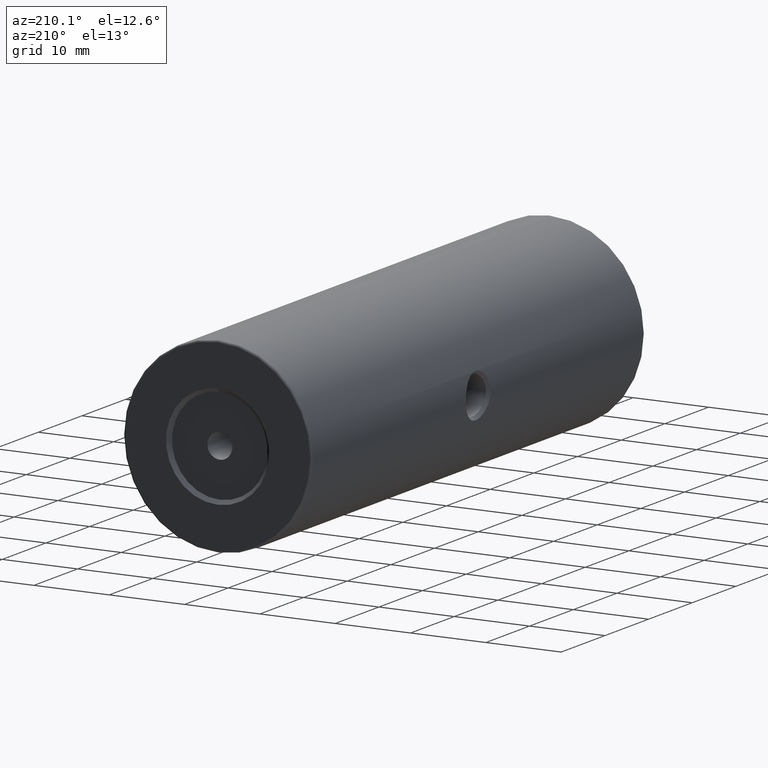
[diagram: clean part render]
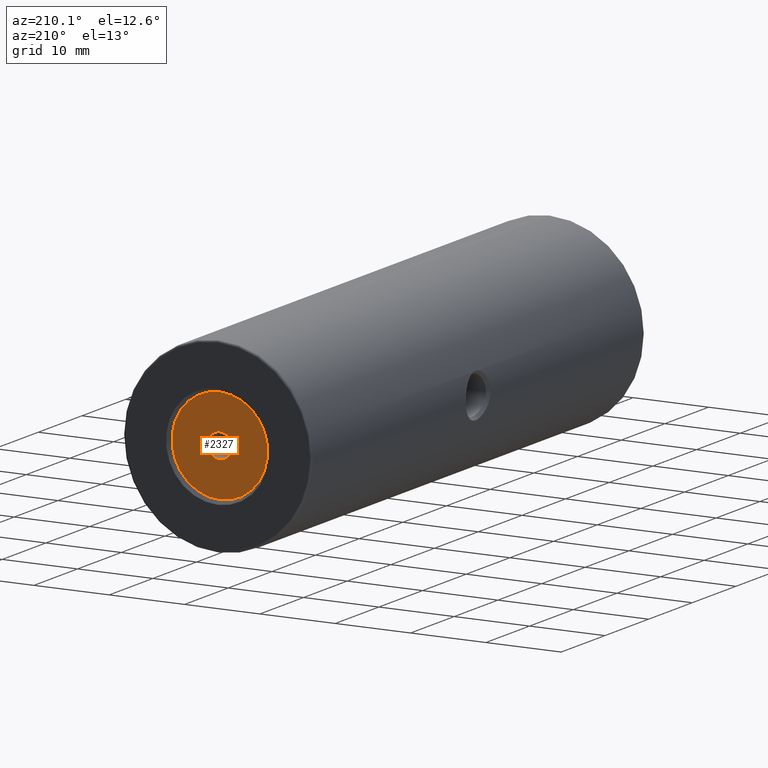
[diagram: same view with one face highlighted and labeled with its STEP entity id]
A machine part, auxiliary view. The second image highlights one B-rep face of the part: STEP entity #2327.
In plain terms, the highlighted planar face has unit normal (0, 1, 0).
Its self-contained STEP definition (entity closure, byte-faithful):
#29 = DIRECTION ( 'NONE',  ( 0.0000000000000000000, 0.0000000000000000000, 1.000000000000000000 ) ) ;
#80 = CARTESIAN_POINT ( 'NONE',  ( -22.50520183104453409, 38.99825218476939170, 50.00000000000000000 ) ) ;
#109 = CARTESIAN_POINT ( 'NONE',  ( -22.50520183104453409, 38.99825218476939170, 43.64999999999999858 ) ) ;
#142 = ORIENTED_EDGE ( 'NONE', *, *, #1512, .F. ) ;
#265 = FACE_BOUND ( 'NONE', #1192, .T. ) ;
#299 = DIRECTION ( 'NONE',  ( 0.0000000000000000000, 1.000000000000000000, 0.0000000000000000000 ) ) ;
#309 = EDGE_CURVE ( 'NONE', #2095, #876, #1846, .T. ) ;
#528 = AXIS2_PLACEMENT_3D ( 'NONE', #1926, #1935, #1121 ) ;
#596 = FACE_OUTER_BOUND ( 'NONE', #2811, .T. ) ;
#846 = CARTESIAN_POINT ( 'NONE',  ( -22.50520183104453409, 38.99825218476939170, 51.64999999999999858 ) ) ;
#876 = VERTEX_POINT ( 'NONE', #3428 ) ;
#1024 = CIRCLE ( 'NONE', #2494, 1.649999999999998579 ) ;
#1101 = CARTESIAN_POINT ( 'NONE',  ( -22.50520183104453409, 38.99825218476939170, 50.00000000000000000 ) ) ;
#1121 = DIRECTION ( 'NONE',  ( 0.0000000000000000000, 0.0000000000000000000, 1.000000000000000000 ) ) ;
#1192 = EDGE_LOOP ( 'NONE', ( #1404, #142 ) ) ;
#1204 = AXIS2_PLACEMENT_3D ( 'NONE', #1101, #299, #1326 ) ;
#1214 = ORIENTED_EDGE ( 'NONE', *, *, #2176, .T. ) ;
#1326 = DIRECTION ( 'NONE',  ( 0.0000000000000000000, -0.0000000000000000000, 1.000000000000000000 ) ) ;
#1404 = ORIENTED_EDGE ( 'NONE', *, *, #309, .F. ) ;
#1435 = VERTEX_POINT ( 'NONE', #109 ) ;
#1450 = AXIS2_PLACEMENT_3D ( 'NONE', #80, #2229, #2213 ) ;
#1512 = EDGE_CURVE ( 'NONE', #876, #2095, #1024, .T. ) ;
#1563 = AXIS2_PLACEMENT_3D ( 'NONE', #1668, #2736, #29 ) ;
#1668 = CARTESIAN_POINT ( 'NONE',  ( -22.50520183104453409, 38.99825218476939170, 50.00000000000000000 ) ) ;
#1784 = CARTESIAN_POINT ( 'NONE',  ( -22.50520183104453409, 38.99825218476939170, 56.35000000000000142 ) ) ;
#1846 = CIRCLE ( 'NONE', #1450, 1.649999999999998579 ) ;
#1911 = CIRCLE ( 'NONE', #1563, 6.350000000000001421 ) ;
#1926 = CARTESIAN_POINT ( 'NONE',  ( -22.50520183104453409, 38.99825218476939170, 50.00000000000000000 ) ) ;
#1935 = DIRECTION ( 'NONE',  ( 0.0000000000000000000, 1.000000000000000000, 0.0000000000000000000 ) ) ;
#1939 = CIRCLE ( 'NONE', #528, 6.350000000000001421 ) ;
#2025 = VERTEX_POINT ( 'NONE', #1784 ) ;
#2095 = VERTEX_POINT ( 'NONE', #846 ) ;
#2176 = EDGE_CURVE ( 'NONE', #2025, #1435, #1939, .T. ) ;
#2213 = DIRECTION ( 'NONE',  ( 0.0000000000000000000, 0.0000000000000000000, 1.000000000000000000 ) ) ;
#2229 = DIRECTION ( 'NONE',  ( 0.0000000000000000000, 1.000000000000000000, 0.0000000000000000000 ) ) ;
#2315 = CARTESIAN_POINT ( 'NONE',  ( -22.50520183104453409, 38.99825218476939170, 50.00000000000000000 ) ) ;
#2327 = ADVANCED_FACE ( 'NONE', ( #265, #596 ), #2456, .T. ) ;
#2456 = PLANE ( 'NONE',  #1204 ) ;
#2494 = AXIS2_PLACEMENT_3D ( 'NONE', #2315, #3135, #3432 ) ;
#2653 = EDGE_CURVE ( 'NONE', #1435, #2025, #1911, .T. ) ;
#2736 = DIRECTION ( 'NONE',  ( 0.0000000000000000000, 1.000000000000000000, 0.0000000000000000000 ) ) ;
#2811 = EDGE_LOOP ( 'NONE', ( #1214, #3004 ) ) ;
#3004 = ORIENTED_EDGE ( 'NONE', *, *, #2653, .T. ) ;
#3135 = DIRECTION ( 'NONE',  ( 0.0000000000000000000, 1.000000000000000000, 0.0000000000000000000 ) ) ;
#3428 = CARTESIAN_POINT ( 'NONE',  ( -22.50520183104453409, 38.99825218476939170, 48.35000000000000142 ) ) ;
#3432 = DIRECTION ( 'NONE',  ( 0.0000000000000000000, 0.0000000000000000000, 1.000000000000000000 ) ) ;